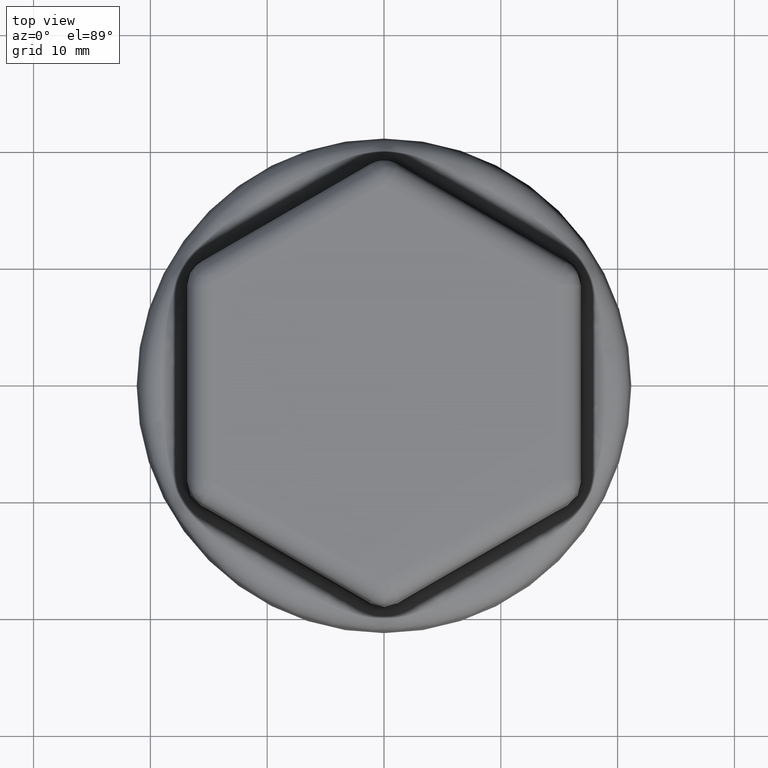
[diagram: clean part render]
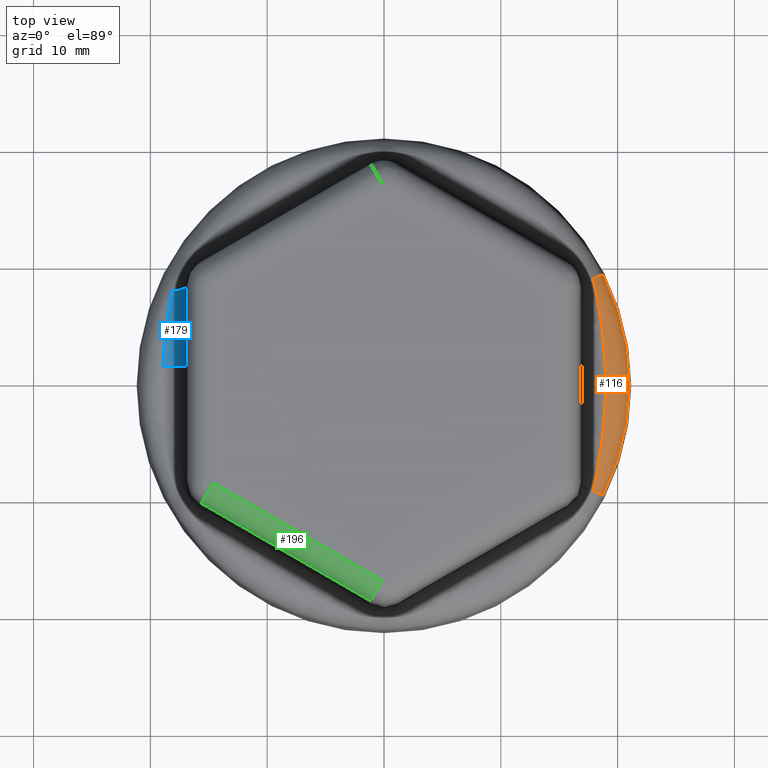
[diagram: same view with three faces highlighted in distinct colors, each labeled with its STEP entity id]
A machine part, top view with three faces highlighted in distinct colors.
Their STEP definitions:

[orange] entity #116 — the highlighted toroidal blend (fillet) surface has major radius 18.9973 mm and minor (blend) radius 2 mm.
#116 = ADVANCED_FACE( '', ( #284 ), #285, .T. );
#284 = FACE_OUTER_BOUND( '', #1353, .T. );
#285 = TOROIDAL_SURFACE( '', #1354, 18.9972553080042, 2.00000000000000 );
#1353 = EDGE_LOOP( '', ( #4678, #4679, #4680, #4681, #4682, #4683, #4684, #4685 ) );
#1354 = AXIS2_PLACEMENT_3D( '', #4686, #4687, #4688 );
#4678 = ORIENTED_EDGE( '', *, *, #5292, .F. );
#4679 = ORIENTED_EDGE( '', *, *, #5288, .T. );
#4680 = ORIENTED_EDGE( '', *, *, #5293, .T. );
#4681 = ORIENTED_EDGE( '', *, *, #5294, .T. );
#4682 = ORIENTED_EDGE( '', *, *, #5295, .F. );
#4683 = ORIENTED_EDGE( '', *, *, #5296, .F. );
#4684 = ORIENTED_EDGE( '', *, *, #5297, .T. );
#4685 = ORIENTED_EDGE( '', *, *, #5289, .T. );
#4686 = CARTESIAN_POINT( '', ( 0.000000000000000, 0.000000000000000, 3.30000000000000 ) );
#4687 = DIRECTION( '', ( 0.000000000000000, 0.000000000000000, 1.00000000000000 ) );
#4688 = DIRECTION( '', ( 1.00000000000000, 0.000000000000000, 0.000000000000000 ) );
#5288 = EDGE_CURVE( '', #5640, #5645, #5647, .T. );
#5289 = EDGE_CURVE( '', #5648, #5636, #5649, .T. );
#5292 = EDGE_CURVE( '', #5640, #5636, #5653, .T. );
#5293 = EDGE_CURVE( '', #5645, #5654, #5655, .T. );
#5294 = EDGE_CURVE( '', #5654, #5656, #5657, .T. );
#5295 = EDGE_CURVE( '', #5658, #5656, #5659, .T. );
#5296 = EDGE_CURVE( '', #5660, #5658, #5661, .T. );
#5297 = EDGE_CURVE( '', #5660, #5648, #5662, .T. );
#5636 = VERTEX_POINT( '', #6252 );
#5640 = VERTEX_POINT( '', #6257 );
#5645 = VERTEX_POINT( '', #6278 );
#5647 = B_SPLINE_CURVE_WITH_KNOTS( '', 3, ( #6280, #6281, #6282, #6283, #6284, #6285, #6286, #6287, #6288, #6289, #6290, #6291, #6292, #6293, #6294, #6295, #6296, #6297, #6298, #6299, #6300 ), .UNSPECIFIED., .F., .F., ( 4, 1, 2, 2, 2, 1, 2, 2, 2, 1, 1, 1, 4 ), ( 1.30104260698261E-018, 0.000811143435118013, 0.00162228687023602, 0.00243343030535404, 0.00324457374047205, 0.00365014545803105, 0.00385293131681056, 0.00405571717559006, 0.00486686061070807, 0.00527243232826708, 0.00567800404582608, 0.00608357576338509, 0.00648914748094409 ), .UNSPECIFIED. );
#5648 = VERTEX_POINT( '', #6301 );
#5649 = B_SPLINE_CURVE_WITH_KNOTS( '', 3, ( #6302, #6303, #6304, #6305, #6306, #6307, #6308, #6309, #6310, #6311, #6312, #6313, #6314, #6315, #6316, #6317, #6318, #6319, #6320, #6321 ), .UNSPECIFIED., .F., .F., ( 4, 1, 1, 1, 2, 2, 2, 2, 2, 2, 1, 4 ), ( 0.000000000000000, 0.000405447048165416, 0.000810894096330833, 0.00121634114449625, 0.00162178819266167, 0.00243268228899250, 0.00324357638532333, 0.00364902343348875, 0.00405447048165417, 0.00486536457798500, 0.00567625867431584, 0.00648715277064668 ), .UNSPECIFIED. );
#5653 = CIRCLE( '', #6340, 18.9972553080042 );
#5654 = VERTEX_POINT( '', #6341 );
#5655 = B_SPLINE_CURVE_WITH_KNOTS( '', 3, ( #6342, #6343, #6344, #6345, #6346, #6347, #6348 ), .UNSPECIFIED., .F., .F., ( 4, 1, 2, 4 ), ( 0.000000000000000, 0.000261096288607715, 0.000522192577215430, 0.00104438515443086 ), .UNSPECIFIED. );
#5656 = VERTEX_POINT( '', #6349 );
#5657 = CIRCLE( '', #6350, 2.00000000000000 );
#5658 = VERTEX_POINT( '', #6351 );
#5659 = CIRCLE( '', #6352, 20.9945143775133 );
#5660 = VERTEX_POINT( '', #6353 );
#5661 = CIRCLE( '', #6354, 2.00000000000000 );
#5662 = B_SPLINE_CURVE_WITH_KNOTS( '', 3, ( #6355, #6356, #6357, #6358, #6359, #6360, #6361 ), .UNSPECIFIED., .F., .F., ( 4, 2, 1, 4 ), ( 0.000000000000000, 0.000522192577417653, 0.000783288866126475, 0.00104438515483530 ), .UNSPECIFIED. );
#6252 = CARTESIAN_POINT( '', ( 18.9304843963750, 1.59137354385961, 5.30000000000000 ) );
#6257 = CARTESIAN_POINT( '', ( 18.9304843963753, -1.59137354385537, 5.30000000000000 ) );
#6278 = CARTESIAN_POINT( '', ( 18.1561667580364, -8.02636274461789, 5.10854424460452 ) );
#6280 = CARTESIAN_POINT( '', ( 18.9304843963751, -1.59137354385536, 5.30000000000000 ) );
#6281 = CARTESIAN_POINT( '', ( 18.9191549181609, -1.86186983944510, 5.30000000000000 ) );
#6282 = CARTESIAN_POINT( '', ( 18.8907823480148, -2.40233350471989, 5.29981879909327 ) );
#6283 = CARTESIAN_POINT( '', ( 18.8512192912946, -2.94175410250801, 5.29852488637558 ) );
#6284 = CARTESIAN_POINT( '', ( 18.8062139758493, -3.48066218447880, 5.29613281582901 ) );
#6285 = CARTESIAN_POINT( '', ( 18.7809901430866, -3.74985997164689, 5.29438858429582 ) );
#6286 = CARTESIAN_POINT( '', ( 18.7252887886759, -4.28775359723729, 5.28907585018199 ) );
#6287 = CARTESIAN_POINT( '', ( 18.6948112028470, -4.55644944408216, 5.28550887194042 ) );
#6288 = CARTESIAN_POINT( '', ( 18.6453239371293, -4.95912570434461, 5.27808058490866 ) );
#6289 = CARTESIAN_POINT( '', ( 18.6196380283354, -5.16037197189423, 5.27384420054013 ) );
#6290 = CARTESIAN_POINT( '', ( 18.5925746316526, -5.36148223540406, 5.26866237887991 ) );
#6291 = CARTESIAN_POINT( '', ( 18.5742305476601, -5.49552572603758, 5.26497743673027 ) );
#6292 = CARTESIAN_POINT( '', ( 18.5649068183835, -5.56253783422221, 5.26301969721986 ) );
#6293 = CARTESIAN_POINT( '', ( 18.5175544406310, -5.89745412044316, 5.25260466677476 ) );
#6294 = CARTESIAN_POINT( '', ( 18.4773307091184, -6.16487336287284, 5.24228691984257 ) );
#6295 = CARTESIAN_POINT( '', ( 18.4137416425722, -6.56520006121282, 5.22264679458895 ) );
#6296 = CARTESIAN_POINT( '', ( 18.3702651790944, -6.83181683668114, 5.20815880119618 ) );
#6297 = CARTESIAN_POINT( '', ( 18.3019427616799, -7.23091671837027, 5.18151110772266 ) );
#6298 = CARTESIAN_POINT( '', ( 18.2306665003600, -7.62916295100555, 5.14909056999076 ) );
#6299 = CARTESIAN_POINT( '', ( 18.1812899860501, -7.89406703212800, 5.12295094684733 ) );
#6300 = CARTESIAN_POINT( '', ( 18.1561667580364, -8.02636274461789, 5.10854424460452 ) );
#6301 = CARTESIAN_POINT( '', ( 18.1561667581117, 8.02636274422139, 5.10854424464769 ) );
#6302 = CARTESIAN_POINT( '', ( 18.1561667581117, 8.02636274422139, 5.10854424464769 ) );
#6303 = CARTESIAN_POINT( '', ( 18.1813041625747, 7.89399238035358, 5.12295907625309 ) );
#6304 = CARTESIAN_POINT( '', ( 18.2306971151448, 7.62899614217678, 5.14910652779254 ) );
#6305 = CARTESIAN_POINT( '', ( 18.3019687850000, 7.23076675239762, 5.18152218133593 ) );
#6306 = CARTESIAN_POINT( '', ( 18.3702630701924, 6.83182575612343, 5.20815765028763 ) );
#6307 = CARTESIAN_POINT( '', ( 18.4137086073553, 6.56540237787847, 5.22263574320182 ) );
#6308 = CARTESIAN_POINT( '', ( 18.4772445786083, 6.16542689441969, 5.24226201077467 ) );
#6309 = CARTESIAN_POINT( '', ( 18.5174240357829, 5.89832307102856, 5.25257132583490 ) );
#6310 = CARTESIAN_POINT( '', ( 18.5930933909090, 5.36323155542807, 5.26922389633318 ) );
#6311 = CARTESIAN_POINT( '', ( 18.6285834314523, 5.09524368728825, 5.27556287475685 ) );
#6312 = CARTESIAN_POINT( '', ( 18.6780838704118, 4.69260815300518, 5.28300042740963 ) );
#6313 = CARTESIAN_POINT( '', ( 18.6939619069879, 4.55828728727474, 5.28513197553903 ) );
#6314 = CARTESIAN_POINT( '', ( 18.7244412823156, 4.28942843437155, 5.28882502711155 ) );
#6315 = CARTESIAN_POINT( '', ( 18.7390437254860, 4.15487974129925, 5.29038657670826 ) );
#6316 = CARTESIAN_POINT( '', ( 18.7808836750518, 3.75097932406463, 5.29438081881603 ) );
#6317 = CARTESIAN_POINT( '', ( 18.8061384207291, 3.48151488264844, 5.29612814702573 ) );
#6318 = CARTESIAN_POINT( '', ( 18.8511880468376, 2.94218013353201, 5.29852387714489 ) );
#6319 = CARTESIAN_POINT( '', ( 18.8907778743077, 2.40243951838901, 5.29981936383902 ) );
#6320 = CARTESIAN_POINT( '', ( 18.9191549358871, 1.86186941622347, 5.30000000000000 ) );
#6321 = CARTESIAN_POINT( '', ( 18.9304843963750, 1.59137354385961, 5.30000000000000 ) );
#6340 = AXIS2_PLACEMENT_3D( '', #8182, #8183, #8184 );
#6341 = CARTESIAN_POINT( '', ( 17.8762350140566, -9.02815037954723, 5.01473537503081 ) );
#6342 = CARTESIAN_POINT( '', ( 18.1561667580364, -8.02636274461789, 5.10854424460452 ) );
#6343 = CARTESIAN_POINT( '', ( 18.1399615797111, -8.11169714353928, 5.09925152278351 ) );
#6344 = CARTESIAN_POINT( '', ( 18.1038494372028, -8.28137786998677, 5.08116080490660 ) );
#6345 = CARTESIAN_POINT( '', ( 18.0605888205801, -8.44918983491172, 5.06444503846356 ) );
#6346 = CARTESIAN_POINT( '', ( 17.9904669231492, -8.69956698382425, 5.04066252386118 ) );
#6347 = CARTESIAN_POINT( '', ( 17.9367599277138, -8.86470239374719, 5.02653642015688 ) );
#6348 = CARTESIAN_POINT( '', ( 17.8762350140566, -9.02815037954721, 5.01473537503085 ) );
#6349 = CARTESIAN_POINT( '', ( 18.7401591167461, -9.46446354669138, 3.40467191248589 ) );
#6350 = AXIS2_PLACEMENT_3D( '', #8185, #8186, #8187 );
#6351 = CARTESIAN_POINT( '', ( 18.7401591167461, 9.46446354669143, 3.40467191248589 ) );
#6352 = AXIS2_PLACEMENT_3D( '', #8188, #8189, #8190 );
#6353 = CARTESIAN_POINT( '', ( 17.8762350140566, 9.02815037954728, 5.01473537503079 ) );
#6354 = AXIS2_PLACEMENT_3D( '', #8191, #8192, #8193 );
#6355 = CARTESIAN_POINT( '', ( 17.8762350140566, 9.02815037954728, 5.01473537503079 ) );
#6356 = CARTESIAN_POINT( '', ( 17.9367599277375, 8.86470239368350, 5.02653642016143 ) );
#6357 = CARTESIAN_POINT( '', ( 17.9904669231911, 8.69956698369570, 5.04066252387218 ) );
#6358 = CARTESIAN_POINT( '', ( 18.0605888206409, 8.44918983468412, 5.06444503848577 ) );
#6359 = CARTESIAN_POINT( '', ( 18.1038492115696, 8.28137779344173, 5.08116066416744 ) );
#6360 = CARTESIAN_POINT( '', ( 18.1399615797807, 8.11169714317588, 5.09925152282487 ) );
#6361 = CARTESIAN_POINT( '', ( 18.1561667581117, 8.02636274422139, 5.10854424464774 ) );
#8182 = CARTESIAN_POINT( '', ( 0.000000000000000, 0.000000000000000, 5.30000000000000 ) );
#8183 = DIRECTION( '', ( 0.000000000000000, 0.000000000000000, 1.00000000000000 ) );
#8184 = DIRECTION( '', ( 1.00000000000000, 0.000000000000000, 0.000000000000000 ) );
#8185 = CARTESIAN_POINT( '', ( 16.9573623305506, -8.56408617588091, 3.30000000000000 ) );
#8186 = DIRECTION( '', ( 0.450806500045961, 0.892621700115066, 2.34607385625800E-015 ) );
#8187 = DIRECTION( '', ( -0.892621700115066, 0.450806500045961, 0.000000000000000 ) );
#8188 = CARTESIAN_POINT( '', ( 0.000000000000000, 0.000000000000000, 3.40467191248589 ) );
#8189 = DIRECTION( '', ( 0.000000000000000, 0.000000000000000, -1.00000000000000 ) );
#8190 = DIRECTION( '', ( -1.00000000000000, 0.000000000000000, 0.000000000000000 ) );
#8191 = CARTESIAN_POINT( '', ( 16.9573623305506, 8.56408617588095, 3.30000000000000 ) );
#8192 = DIRECTION( '', ( -0.450806500045963, 0.892621700115065, 0.000000000000000 ) );
#8193 = DIRECTION( '', ( -0.892621700115065, -0.450806500045963, 0.000000000000000 ) );

[blue] entity #179 — the highlighted face is a freeform B-spline surface patch.
#179 = ADVANCED_FACE( '', ( #412 ), #413, .F. );
#412 = FACE_OUTER_BOUND( '', #3563, .T. );
#413 = ( B_SPLINE_SURFACE( 3, 2, ( ( #3565, #3566, #3567 ), ( #3568, #3569, #3570 ), ( #3571, #3572, #3573 ), ( #3574, #3575, #3576 ), ( #3577, #3578, #3579 ), ( #3580, #3581, #3582 ), ( #3583, #3584, #3585 ), ( #3586, #3587, #3588 ), ( #3589, #3590, #3591 ), ( #3592, #3593, #3594 ), ( #3595, #3596, #3597 ), ( #3598, #3599, #3600 ), ( #3601, #3602, #3603 ), ( #3604, #3605, #3606 ), ( #3607, #3608, #3609 ), ( #3610, #3611, #3612 ), ( #3613, #3614, #3615 ), ( #3616, #3617, #3618 ) ), .UNSPECIFIED., .F., .F., .F. )B_SPLINE_SURFACE_WITH_KNOTS( ( 4, 2, 2, 2, 2, 2, 2, 2, 4 ), ( 3, 3 ), ( -1.37943137815122E-011, 0.000848882036019857, 0.00169776408583403, 0.00254664613564820, 0.00339552818546237, 0.00424441023527654, 0.00509329228509071, 0.00594217433490488, 0.00679105638471905 ), ( 0.000000000000000, 1.00000000000000 ), .UNSPECIFIED. )RATIONAL_B_SPLINE_SURFACE( ( ( 1.00000000000000, 0.838517424169624, 1.00000000000000 ), ( 1.00000000000000, 0.831438701865640, 1.00000000000000 ), ( 1.00000000000000, 0.824435085048246, 1.00000000000000 ), ( 1.00000000000000, 0.810685751181664, 1.00000000000000 ), ( 1.00000000000000, 0.803939898720734, 1.00000000000000 ), ( 1.00000000000000, 0.790822985502500, 1.00000000000000 ), ( 1.00000000000000, 0.784452022362473, 1.00000000000000 ), ( 1.00000000000000, 0.772210745491544, 1.00000000000000 ), ( 1.00000000000000, 0.766340591423503, 1.00000000000000 ), ( 1.00000000000000, 0.755231547908085, 1.00000000000000 ), ( 1.00000000000000, 0.749992875827364, 1.00000000000000 ), ( 1.00000000000000, 0.740276483228489, 1.00000000000000 ), ( 1.00000000000000, 0.735799023494417, 1.00000000000000 ), ( 1.00000000000000, 0.727726568524870, 1.00000000000000 ), ( 1.00000000000000, 0.724131850334351, 1.00000000000000 ), ( 1.00000000000000, 0.717930025825970, 1.00000000000000 ), ( 1.00000000000000, 0.715322732208592, 1.00000000000000 ), ( 1.00000000000000, 0.713250449154174, 1.00000000000000 ) ) )BOUNDED_SURFACE(  )REPRESENTATION_ITEM( '' )GEOMETRIC_REPRESENTATION_ITEM(  )SURFACE(  ) );
#3563 = EDGE_LOOP( '', ( #5050, #5051, #5052, #5053 ) );
#3565 = CARTESIAN_POINT( '', ( -16.9374727513448, 8.37162286987081, 6.88218367633447 ) );
#3566 = CARTESIAN_POINT( '', ( -16.9597457199906, 8.12609983428403, 5.60616615721278 ) );
#3567 = CARTESIAN_POINT( '', ( -18.1561667580364, 8.02636274461791, 5.10854424460452 ) );
#3568 = CARTESIAN_POINT( '', ( -16.9365314148572, 8.09126023557894, 6.93611280758736 ) );
#3569 = CARTESIAN_POINT( '', ( -16.9595254322920, 7.86487755938903, 5.61878643099901 ) );
#3570 = CARTESIAN_POINT( '', ( -18.2031892170879, 7.77874847955247, 5.13550887471288 ) );
#3571 = CARTESIAN_POINT( '', ( -16.9357432755988, 7.81039678677611, 6.98126527546089 ) );
#3572 = CARTESIAN_POINT( '', ( -16.9594313539111, 7.60235893324857, 5.62417617782466 ) );
#3573 = CARTESIAN_POINT( '', ( -18.2491784069647, 7.52800346020917, 5.15808504449127 ) );
#3574 = CARTESIAN_POINT( '', ( -16.9344023359620, 7.24791322755670, 7.05808765580323 ) );
#3575 = CARTESIAN_POINT( '', ( -16.9594317587615, 7.07464498120546, 5.62415298400233 ) );
#3576 = CARTESIAN_POINT( '', ( -18.3384489245907, 7.02057271832342, 5.19649623401537 ) );
#3577 = CARTESIAN_POINT( '', ( -16.9338498011987, 6.96628976170668, 7.08974235119309 ) );
#3578 = CARTESIAN_POINT( '', ( -16.9595264562021, 6.80944835611696, 5.61872777126105 ) );
#3579 = CARTESIAN_POINT( '', ( -18.3817304062641, 6.76388442046082, 5.21232358230805 ) );
#3580 = CARTESIAN_POINT( '', ( -16.9329257097316, 6.40245711073138, 7.14268351588946 ) );
#3581 = CARTESIAN_POINT( '', ( -16.9598510597340, 6.27625292877732, 5.60013124733660 ) );
#3582 = CARTESIAN_POINT( '', ( -18.4649545717059, 6.24493196634084, 5.23879416410779 ) );
#3583 = CARTESIAN_POINT( '', ( -16.9325542891345, 6.12024748510819, 7.16396218764240 ) );
#3584 = CARTESIAN_POINT( '', ( -16.9600810684843, 6.00825237015493, 5.58695405484617 ) );
#3585 = CARTESIAN_POINT( '', ( -18.5048968446144, 5.98266730778699, 5.24943350050604 ) );
#3586 = CARTESIAN_POINT( '', ( -16.9319480655112, 5.55538608333343, 7.19869271576080 ) );
#3587 = CARTESIAN_POINT( '', ( -16.9606281833794, 5.46933344623563, 5.55560986355960 ) );
#3588 = CARTESIAN_POINT( '', ( -18.5808275033198, 5.45301170598461, 5.26679876407012 ) );
#3589 = CARTESIAN_POINT( '', ( -16.9317133290638, 5.27273409170542, 7.21214075782507 ) );
#3590 = CARTESIAN_POINT( '', ( -16.9609453274242, 5.19841321450805, 5.53744069338084 ) );
#3591 = CARTESIAN_POINT( '', ( -18.6168153296093, 5.18562059498242, 5.27352278555870 ) );
#3592 = CARTESIAN_POINT( '', ( -16.9313432783570, 4.70710833744531, 7.23334094862194 ) );
#3593 = CARTESIAN_POINT( '', ( -16.9616218837291, 4.65360422589813, 5.49868080860488 ) );
#3594 = CARTESIAN_POINT( '', ( -18.6842534480749, 4.64625279199068, 5.28412288053937 ) );
#3595 = CARTESIAN_POINT( '', ( -16.9312079920967, 4.42413448419631, 7.24109149328502 ) );
#3596 = CARTESIAN_POINT( '', ( -16.9619812881405, 4.37971363185350, 5.47809054368911 ) );
#3597 = CARTESIAN_POINT( '', ( -18.7157031112034, 4.37427621104987, 5.28799815326008 ) );
#3598 = CARTESIAN_POINT( '', ( -16.9310054973293, 3.85796645014963, 7.25269241074006 ) );
#3599 = CARTESIAN_POINT( '', ( -16.9627004315378, 3.82903445169358, 5.43689084603702 ) );
#3600 = CARTESIAN_POINT( '', ( -18.7735308554572, 3.82636994880636, 5.29379861162702 ) );
#3601 = CARTESIAN_POINT( '', ( -16.9309382945690, 3.57477225075216, 7.25654245429653 ) );
#3602 = CARTESIAN_POINT( '', ( -16.9630601276525, 3.55224442365833, 5.41628386945074 ) );
#3603 = CARTESIAN_POINT( '', ( -18.7999083073403, 3.55044062451431, 5.29572363373513 ) );
#3604 = CARTESIAN_POINT( '', ( -16.9308460249079, 3.00824748302370, 7.26182857963960 ) );
#3605 = CARTESIAN_POINT( '', ( -16.9637416194804, 2.99600895837626, 5.37724122874279 ) );
#3606 = CARTESIAN_POINT( '', ( -18.8471263489282, 2.99534596042686, 5.29836669610751 ) );
#3607 = CARTESIAN_POINT( '', ( -16.9308209517251, 2.72491693502322, 7.26326502131941 ) );
#3608 = CARTESIAN_POINT( '', ( -16.9640633486567, 2.71656297118163, 5.35880937657872 ) );
#3609 = CARTESIAN_POINT( '', ( -18.8679663737553, 2.71618118752283, 5.29908491721246 ) );
#3610 = CARTESIAN_POINT( '', ( -16.9307924477619, 2.15818579532626, 7.26489801227843 ) );
#3611 = CARTESIAN_POINT( '', ( -16.9646360613895, 2.15546206482082, 5.32599868612772 ) );
#3612 = CARTESIAN_POINT( '', ( -18.9037312299457, 2.15540327497937, 5.29990141246103 ) );
#3613 = CARTESIAN_POINT( '', ( -16.9307890060566, 1.87478493946940, 7.26509518744105 ) );
#3614 = CARTESIAN_POINT( '', ( -16.9648869687307, 1.87381047086836, 5.31162421415729 ) );
#3615 = CARTESIAN_POINT( '', ( -18.9186555948047, 1.87379140302731, 5.30000000000000 ) );
#3616 = CARTESIAN_POINT( '', ( -16.9307890060622, 1.59137354385881, 7.26509518712543 ) );
#3617 = CARTESIAN_POINT( '', ( -16.9650898701436, 1.59137354385881, 5.29999999999995 ) );
#3618 = CARTESIAN_POINT( '', ( -18.9304843963750, 1.59137354385881, 5.30000000000000 ) );
#5050 = ORIENTED_EDGE( '', *, *, #5432, .T. );
#5051 = ORIENTED_EDGE( '', *, *, #5332, .F. );
#5052 = ORIENTED_EDGE( '', *, *, #5457, .F. );
#5053 = ORIENTED_EDGE( '', *, *, #5456, .F. );
#5332 = EDGE_CURVE( '', #5724, #5726, #5727, .T. );
#5432 = EDGE_CURVE( '', #5822, #5726, #5886, .T. );
#5456 = EDGE_CURVE( '', #5822, #5914, #5916, .T. );
#5457 = EDGE_CURVE( '', #5914, #5724, #5917, .T. );
#5724 = VERTEX_POINT( '', #6763 );
#5726 = VERTEX_POINT( '', #6765 );
#5727 = B_SPLINE_CURVE_WITH_KNOTS( '', 3, ( #6766, #6767, #6768, #6769, #6770, #6771, #6772, #6773, #6774, #6775, #6776, #6777, #6778, #6779, #6780, #6781, #6782, #6783, #6784, #6785, #6786 ), .UNSPECIFIED., .F., .F., ( 4, 1, 2, 2, 2, 1, 2, 2, 2, 1, 1, 1, 4 ), ( 0.000000000000000, 0.000811143435117455, 0.00162228687023491, 0.00243343030535236, 0.00324457374046982, 0.00365014545802854, 0.00385293131680791, 0.00405571717558727, 0.00486686061070473, 0.00527243232826346, 0.00567800404582219, 0.00608357576338091, 0.00648914748093964 ), .UNSPECIFIED. );
#5822 = VERTEX_POINT( '', #7342 );
#5886 = CIRCLE( '', #7735, 2.00000000000000 );
#5914 = VERTEX_POINT( '', #7901 );
#5916 = B_SPLINE_CURVE_WITH_KNOTS( '', 3, ( #7904, #7905, #7906, #7907, #7908, #7909, #7910, #7911, #7912, #7913, #7914, #7915, #7916, #7917, #7918, #7919 ), .UNSPECIFIED., .F., .F., ( 4, 1, 1, 1, 2, 2, 2, 1, 1, 1, 4 ), ( 0.000000000000000, 0.000424441024044877, 0.000848882048089753, 0.00127332307213463, 0.00169776409617951, 0.00254664614426926, 0.00339552819235902, 0.00424441024044877, 0.00509329228853853, 0.00594217433662828, 0.00679105638471804 ), .UNSPECIFIED. );
#5917 = CIRCLE( '', #7920, 2.00000000000000 );
#6763 = CARTESIAN_POINT( '', ( -18.9304843963749, 1.59137354385982, 5.30000000000000 ) );
#6765 = CARTESIAN_POINT( '', ( -18.1561667580364, 8.02636274461791, 5.10854424460452 ) );
#6766 = CARTESIAN_POINT( '', ( -18.9304843963749, 1.59137354385982, 5.30000000000000 ) );
#6767 = CARTESIAN_POINT( '', ( -18.9191549181607, 1.86186983944937, 5.30000000000000 ) );
#6768 = CARTESIAN_POINT( '', ( -18.8907823480145, 2.40233350472379, 5.29981879909327 ) );
#6769 = CARTESIAN_POINT( '', ( -18.8512192912943, 2.94175410251154, 5.29852488637557 ) );
#6770 = CARTESIAN_POINT( '', ( -18.8062139758490, 3.48066218448195, 5.29613281582899 ) );
#6771 = CARTESIAN_POINT( '', ( -18.7809901430863, 3.74985997164986, 5.29438858429579 ) );
#6772 = CARTESIAN_POINT( '', ( -18.7252887886756, 4.28775359723988, 5.28907585018196 ) );
#6773 = CARTESIAN_POINT( '', ( -18.6948112028467, 4.55644944408457, 5.28550887194038 ) );
#6774 = CARTESIAN_POINT( '', ( -18.6453239371291, 4.95912570434674, 5.27808058490861 ) );
#6775 = CARTESIAN_POINT( '', ( -18.6196380283351, 5.16037197189622, 5.27384420054009 ) );
#6776 = CARTESIAN_POINT( '', ( -18.5925746316524, 5.36148223540591, 5.26866237887986 ) );
#6777 = CARTESIAN_POINT( '', ( -18.5742305476599, 5.49552572603934, 5.26497743673022 ) );
#6778 = CARTESIAN_POINT( '', ( -18.5649068183833, 5.56253783422392, 5.26301969721981 ) );
#6779 = CARTESIAN_POINT( '', ( -18.5175544406308, 5.89745412044464, 5.25260466677470 ) );
#6780 = CARTESIAN_POINT( '', ( -18.4773307091182, 6.16487336287414, 5.24228691984252 ) );
#6781 = CARTESIAN_POINT( '', ( -18.4137416425720, 6.56520006121383, 5.22264679458890 ) );
#6782 = CARTESIAN_POINT( '', ( -18.3702651790943, 6.83181683668198, 5.20815880119613 ) );
#6783 = CARTESIAN_POINT( '', ( -18.3019427616798, 7.23091671837083, 5.18151110772262 ) );
#6784 = CARTESIAN_POINT( '', ( -18.2306665003599, 7.62916295100584, 5.14909056999073 ) );
#6785 = CARTESIAN_POINT( '', ( -18.1812899860500, 7.89406703212811, 5.12295094684732 ) );
#6786 = CARTESIAN_POINT( '', ( -18.1561667580364, 8.02636274461791, 5.10854424460452 ) );
#7342 = CARTESIAN_POINT( '', ( -16.9374727513448, 8.37162286987081, 6.88218367633447 ) );
#7735 = AXIS2_PLACEMENT_3D( '', #8354, #8355, #8356 );
#7901 = CARTESIAN_POINT( '', ( -16.9307890060622, 1.59137354385982, 7.26509518712543 ) );
#7904 = CARTESIAN_POINT( '', ( -16.9374727513448, 8.37162286987081, 6.88218367633447 ) );
#7905 = CARTESIAN_POINT( '', ( -16.9370020789179, 8.23144031174611, 6.90914848161283 ) );
#7906 = CARTESIAN_POINT( '', ( -16.9361376597801, 7.95082623230853, 6.95867102085037 ) );
#7907 = CARTESIAN_POINT( '', ( -16.9350432227015, 7.52925073806196, 7.02137127908998 ) );
#7908 = CARTESIAN_POINT( '', ( -16.9341262612495, 7.10710085984967, 7.07390396548896 ) );
#7909 = CARTESIAN_POINT( '', ( -16.9336187783078, 6.82533158839123, 7.10297764375054 ) );
#7910 = CARTESIAN_POINT( '', ( -16.9329257097292, 6.40245710095274, 7.14268351602613 ) );
#7911 = CARTESIAN_POINT( '', ( -16.9325542891135, 6.12024747596549, 7.16396218884433 ) );
#7912 = CARTESIAN_POINT( '', ( -16.9319480655137, 5.55538607526628, 7.19869271561702 ) );
#7913 = CARTESIAN_POINT( '', ( -16.9317133290502, 5.27273408426613, 7.21214075860485 ) );
#7914 = CARTESIAN_POINT( '', ( -16.9313432783616, 4.70710833109850, 7.23334094835888 ) );
#7915 = CARTESIAN_POINT( '', ( -16.9310727001065, 4.14116064431132, 7.24884236621126 ) );
#7916 = CARTESIAN_POINT( '', ( -16.9308710981051, 3.29157802752416, 7.26039213713656 ) );
#7917 = CARTESIAN_POINT( '', ( -16.9307958894698, 2.44158634993103, 7.26470083696624 ) );
#7918 = CARTESIAN_POINT( '', ( -16.9307890060622, 1.87478523839427, 7.26509518712543 ) );
#7919 = CARTESIAN_POINT( '', ( -16.9307890060622, 1.59137354385982, 7.26509518712543 ) );
#7920 = AXIS2_PLACEMENT_3D( '', #8393, #8394, #8395 );
#8354 = CARTESIAN_POINT( '', ( -18.9371681417263, 8.37162288360139, 6.91708848677224 ) );
#8355 = DIRECTION( '', ( -0.00329709921265991, 0.981992506145308, -0.188891098284801 ) );
#8356 = DIRECTION( '', ( 0.000000000000000, 0.188892124997818, 0.981997843741934 ) );
#8393 = CARTESIAN_POINT( '', ( -18.9304843963749, 1.59137354385982, 7.30000000000000 ) );
#8394 = DIRECTION( '', ( -1.06544250756559E-016, 1.00000000000000, 1.08420217248551E-016 ) );
#8395 = DIRECTION( '', ( 0.000000000000000, -1.08420217248551E-016, 1.00000000000000 ) );

[green] entity #196 — the highlighted cylindrical surface (edge-blend (fillet) strip) has radius 2 mm, axis along (0.866, -0.5, 0).
#196 = ADVANCED_FACE( '', ( #446 ), #447, .T. );
#446 = FACE_OUTER_BOUND( '', #4413, .T. );
#447 = CYLINDRICAL_SURFACE( '', #4414, 2.00000000000000 );
#4413 = EDGE_LOOP( '', ( #5150, #5151, #5152, #5153 ) );
#4414 = AXIS2_PLACEMENT_3D( '', #5154, #5155, #5156 );
#5150 = ORIENTED_EDGE( '', *, *, #5466, .T. );
#5151 = ORIENTED_EDGE( '', *, *, #5424, .F. );
#5152 = ORIENTED_EDGE( '', *, *, #5462, .F. );
#5153 = ORIENTED_EDGE( '', *, *, #5421, .F. );
#5154 = CARTESIAN_POINT( '', ( -16.5113707118172, -7.52529211667200, 16.3000000000000 ) );
#5155 = DIRECTION( '', ( 0.866025403784439, -0.500000000000000, 1.02567539211751E-029 ) );
#5156 = DIRECTION( '', ( -0.500000000000000, -0.866025403784439, 0.000000000000000 ) );
#5421 = EDGE_CURVE( '', #5750, #5832, #5867, .T. );
#5424 = EDGE_CURVE( '', #5870, #5872, #5873, .F. );
#5462 = EDGE_CURVE( '', #5832, #5870, #5922, .T. );
#5466 = EDGE_CURVE( '', #5750, #5872, #5926, .T. );
#5750 = VERTEX_POINT( '', #6917 );
#5832 = VERTEX_POINT( '', #7421 );
#5867 = LINE( '', #7597, #7598 );
#5870 = VERTEX_POINT( '', #7624 );
#5872 = VERTEX_POINT( '', #7648 );
#5873 = LINE( '', #7649, #7650 );
#5922 = CIRCLE( '', #7928, 2.00000000000000 );
#5926 = CIRCLE( '', #7932, 2.00000000000000 );
#6917 = CARTESIAN_POINT( '', ( -1.13619937028320, -18.7112007733320, 16.3349048128746 ) );
#7421 = CARTESIAN_POINT( '', ( -15.6362755212900, -10.3395779042781, 16.3349048128746 ) );
#7597 = CARTESIAN_POINT( '', ( -17.5112184069736, -9.25707912451350, 16.3349048128746 ) );
#7598 = VECTOR( '', #8348, 1000.00000000000 );
#7624 = CARTESIAN_POINT( '', ( -14.6364278261336, -8.60779089643661, 18.3000000000000 ) );
#7648 = CARTESIAN_POINT( '', ( -0.136351688388577, -16.9794137578338, 18.3000000000000 ) );
#7649 = CARTESIAN_POINT( '', ( -15.7189273948447, -7.98280947904361, 18.3000000000000 ) );
#7650 = VECTOR( '', #8349, 1000.00000000000 );
#7928 = AXIS2_PLACEMENT_3D( '', #8402, #8403, #8404 );
#7932 = AXIS2_PLACEMENT_3D( '', #8414, #8415, #8416 );
#8348 = DIRECTION( '', ( -0.866025403784439, 0.500000000000000, 7.65656096099671E-019 ) );
#8349 = DIRECTION( '', ( -0.866025403784438, 0.500000000000000, -1.02551917678732E-029 ) );
#8402 = CARTESIAN_POINT( '', ( -14.6364278261336, -8.60779089643662, 16.3000000000000 ) );
#8403 = DIRECTION( '', ( -0.866025403784438, 0.500000000000000, -4.64817754479298E-016 ) );
#8404 = DIRECTION( '', ( -0.500000000000000, -0.866025403784438, 0.000000000000000 ) );
#8414 = CARTESIAN_POINT( '', ( -0.136351688388586, -16.9794137578338, 16.3000000000000 ) );
#8415 = DIRECTION( '', ( -0.866025407613367, 0.499999993368102, -2.06607372377427E-016 ) );
#8416 = DIRECTION( '', ( -0.499999993368102, -0.866025407613367, 0.000000000000000 ) );